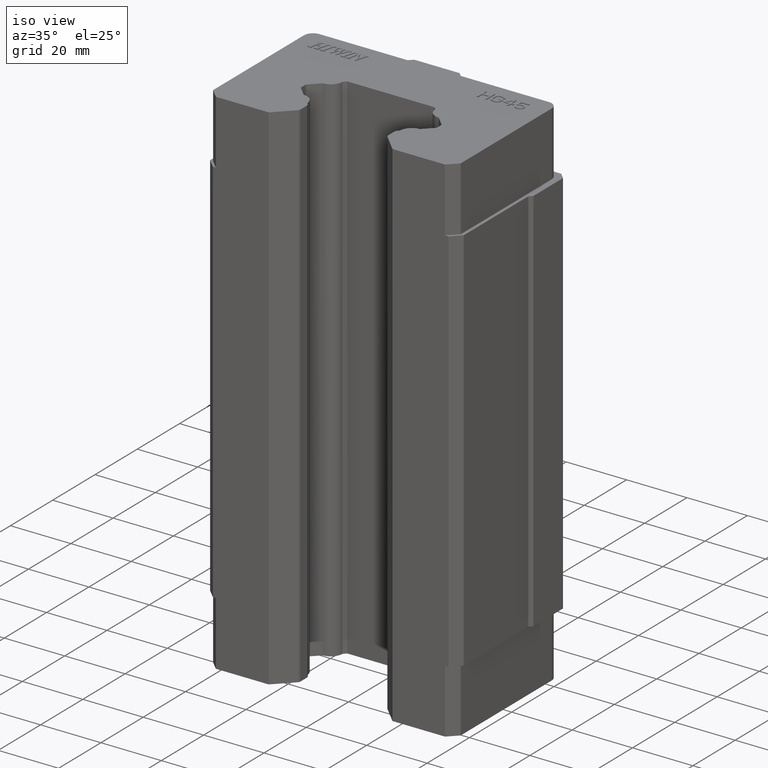
[diagram: clean part render]
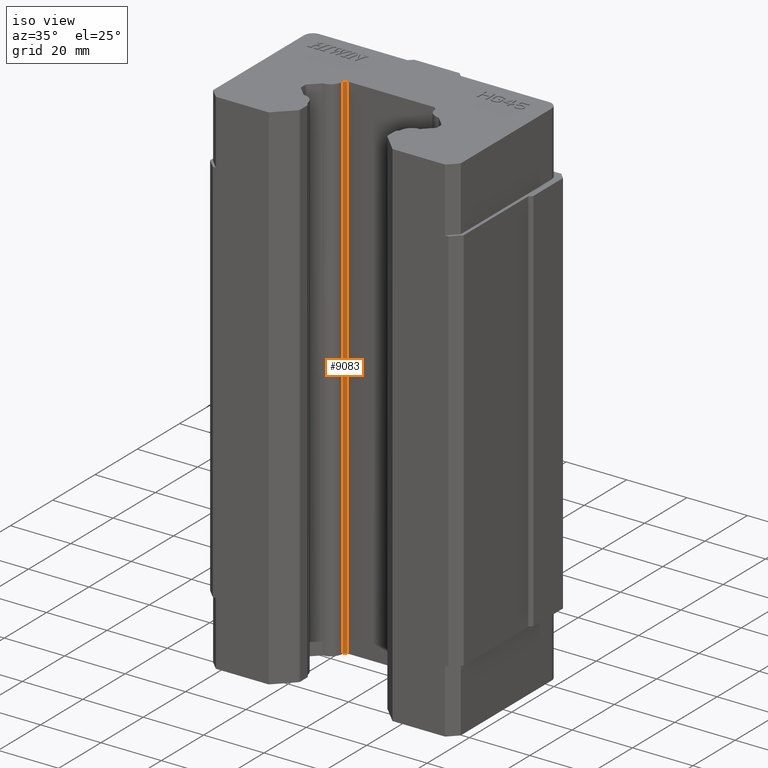
[diagram: same view with one face highlighted and labeled with its STEP entity id]
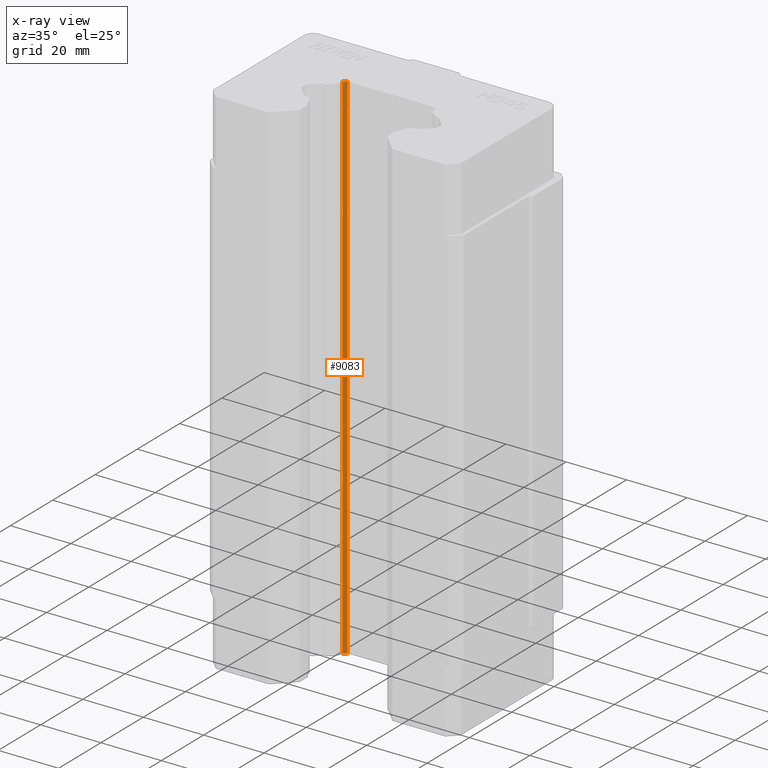
[diagram: x-ray of the same camera — body ghosted, the highlighted face saturated]
A machine part, iso view. The second image highlights one B-rep face of the part: STEP entity #9083.
The next image is the same camera in x-ray: the body ghosted, the highlighted face saturated — about 0% of this face is hidden behind the body in this view.
In plain terms, the highlighted planar face has unit normal (0.7071, -0.7071, 0).
Its self-contained STEP definition (entity closure, byte-faithful):
#517 = VERTEX_POINT ( 'NONE', #1715 ) ;
#519 = EDGE_CURVE ( 'NONE', #520, #517, #1778, .T. ) ;
#520 = VERTEX_POINT ( 'NONE', #1774 ) ;
#1715 = CARTESIAN_POINT ( 'NONE',  ( -15.33350785821788500, -0.9331588581783329900, -85.59999999999999400 ) ) ;
#1774 = CARTESIAN_POINT ( 'NONE',  ( -15.33350785821790100, -0.9331588581789995700, 85.60000000000000900 ) ) ;
#1775 = DIRECTION ( 'NONE',  ( 0.0000000000000000000, 0.0000000000000000000, -1.000000000000000000 ) ) ;
#1776 = VECTOR ( 'NONE', #1775, 1000.000000000000000 ) ;
#1777 = CARTESIAN_POINT ( 'NONE',  ( -15.33350785821935100, -0.9331588581804496400, -64.40000000000000600 ) ) ;
#1778 = LINE ( 'NONE', #1777, #1776 ) ;
#6620 = LINE ( 'NONE', #6678, #6677 ) ;
#6622 = FACE_OUTER_BOUND ( 'NONE', #9109, .T. ) ;
#6627 = CARTESIAN_POINT ( 'NONE',  ( -14.40034900003951700, -2.710505431213761100E-017, 85.60000000000000900 ) ) ;
#6652 = LINE ( 'NONE', #6711, #6710 ) ;
#6663 = DIRECTION ( 'NONE',  ( -0.7071067811864976100, -0.7071067811865975300, 0.0000000000000000000 ) ) ;
#6664 = VECTOR ( 'NONE', #6663, 1000.000000000000100 ) ;
#6665 = CARTESIAN_POINT ( 'NONE',  ( -15.33350785822000100, -0.9331588581811000000, 85.60000000000000900 ) ) ;
#6666 = LINE ( 'NONE', #6665, #6664 ) ;
#6676 = DIRECTION ( 'NONE',  ( 0.7071067811866846900, 0.7071067811864104600, 0.0000000000000000000 ) ) ;
#6677 = VECTOR ( 'NONE', #6676, 1000.000000000000000 ) ;
#6678 = CARTESIAN_POINT ( 'NONE',  ( -15.33350785822000100, -0.9331588581798000400, -85.59999999999999400 ) ) ;
#6679 = DIRECTION ( 'NONE',  ( 0.7071067811864976100, 0.7071067811865975300, 0.0000000000000000000 ) ) ;
#6680 = DIRECTION ( 'NONE',  ( 0.7071067811865975300, -0.7071067811864976100, 0.0000000000000000000 ) ) ;
#6681 = CARTESIAN_POINT ( 'NONE',  ( -15.33350785822000100, -0.9331588581811000000, -64.40000000000000600 ) ) ;
#6682 = AXIS2_PLACEMENT_3D ( 'NONE', #6681, #6680, #6679 ) ;
#6683 = PLANE ( 'NONE',  #6682 ) ;
#6708 = CARTESIAN_POINT ( 'NONE',  ( -14.40034900003993300, -5.350836479148531500E-014, -85.59999999999998000 ) ) ;
#6709 = DIRECTION ( 'NONE',  ( 0.0000000000000000000, 0.0000000000000000000, -1.000000000000000000 ) ) ;
#6710 = VECTOR ( 'NONE', #6709, 1000.000000000000000 ) ;
#6711 = CARTESIAN_POINT ( 'NONE',  ( -14.40034900004000000, 0.0000000000000000000, -64.40000000000000600 ) ) ;
#8965 = VERTEX_POINT ( 'NONE', #6627 ) ;
#9083 = ADVANCED_FACE ( 'NONE', ( #6622 ), #6683, .T. ) ;
#9109 = EDGE_LOOP ( 'NONE', ( #9166, #9448, #9516, #9539 ) ) ;
#9152 = EDGE_CURVE ( 'NONE', #517, #9401, #6620, .T. ) ;
#9166 = ORIENTED_EDGE ( 'NONE', *, *, #9152, .T. ) ;
#9251 = EDGE_CURVE ( 'NONE', #8965, #520, #6666, .T. ) ;
#9390 = EDGE_CURVE ( 'NONE', #8965, #9401, #6652, .T. ) ;
#9401 = VERTEX_POINT ( 'NONE', #6708 ) ;
#9448 = ORIENTED_EDGE ( 'NONE', *, *, #9390, .F. ) ;
#9516 = ORIENTED_EDGE ( 'NONE', *, *, #9251, .T. ) ;
#9539 = ORIENTED_EDGE ( 'NONE', *, *, #519, .T. ) ;